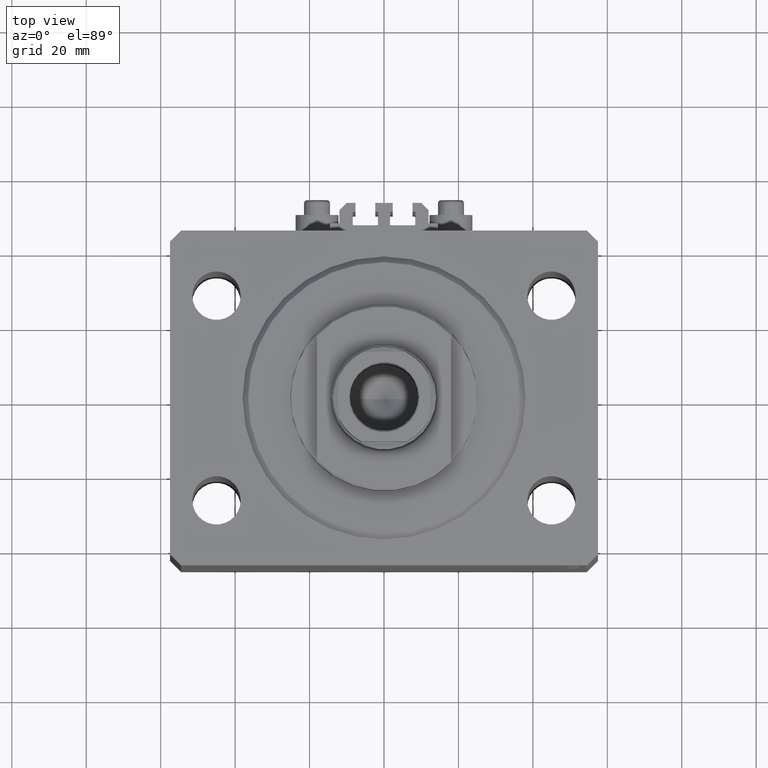
[diagram: clean part render]
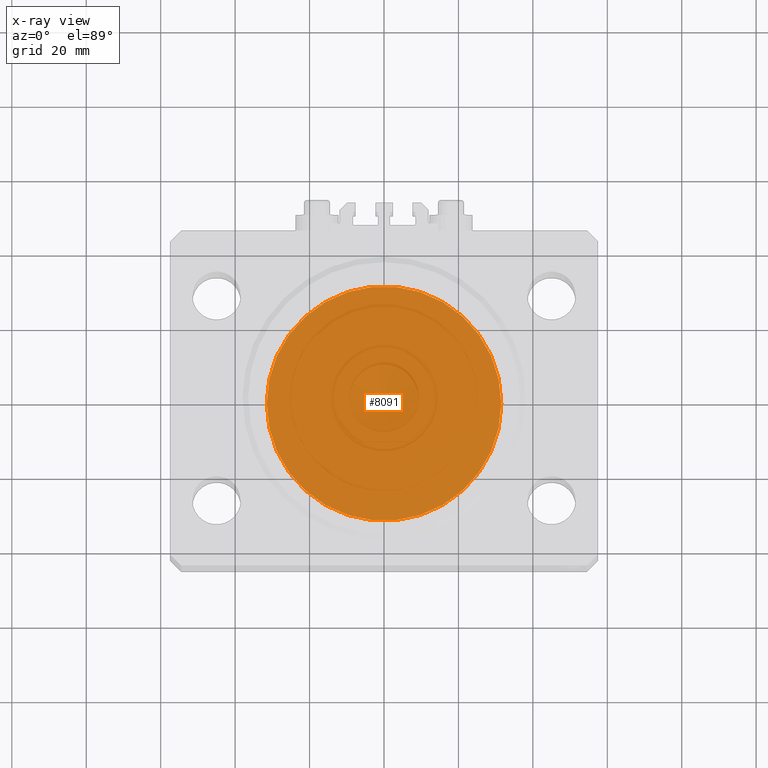
[diagram: x-ray — body ghosted, one internal face saturated and labeled with its STEP entity id]
A machine part, top view, then the same camera in x-ray: the body is ghosted and one INTERNAL B-rep face — a face not visible from any outside direction — is saturated and labeled: STEP entity #8091.
In plain terms, the highlighted planar face has unit normal (0, 0, 1).
Its self-contained STEP definition (entity closure, byte-faithful):
#252 = EDGE_CURVE ( 'NONE', #33418, #7801, #24609, .T. ) ;
#2598 = ORIENTED_EDGE ( 'NONE', *, *, #252, .F. ) ;
#2865 = ORIENTED_EDGE ( 'NONE', *, *, #6141, .F. ) ;
#4874 = CARTESIAN_POINT ( 'NONE',  ( 31.50000000000000000, 3.857637417314162689E-15, 0.000000000000000000 ) ) ;
#5344 = CARTESIAN_POINT ( 'NONE',  ( 0.000000000000000000, 0.000000000000000000, 0.000000000000000000 ) ) ;
#6141 = EDGE_CURVE ( 'NONE', #7801, #33418, #11852, .T. ) ;
#7539 = CARTESIAN_POINT ( 'NONE',  ( -31.50000000000000000, 0.000000000000000000, 0.000000000000000000 ) ) ;
#7801 = VERTEX_POINT ( 'NONE', #7539 ) ;
#8091 = ADVANCED_FACE ( 'NONE', ( #17060 ), #30974, .F. ) ;
#8945 = DIRECTION ( 'NONE',  ( 1.000000000000000000, 0.000000000000000000, -0.000000000000000000 ) ) ;
#11852 = CIRCLE ( 'NONE', #17967, 31.50000000000000000 ) ;
#17060 = FACE_OUTER_BOUND ( 'NONE', #37973, .T. ) ;
#17967 = AXIS2_PLACEMENT_3D ( 'NONE', #5344, #19478, #30493 ) ;
#19306 = DIRECTION ( 'NONE',  ( 1.000000000000000000, 0.000000000000000000, 0.000000000000000000 ) ) ;
#19478 = DIRECTION ( 'NONE',  ( 0.000000000000000000, 0.000000000000000000, 1.000000000000000000 ) ) ;
#24609 = CIRCLE ( 'NONE', #27661, 31.50000000000000000 ) ;
#25531 = DIRECTION ( 'NONE',  ( 0.000000000000000000, 0.000000000000000000, 1.000000000000000000 ) ) ;
#27661 = AXIS2_PLACEMENT_3D ( 'NONE', #36810, #25531, #19306 ) ;
#28079 = DIRECTION ( 'NONE',  ( 0.000000000000000000, 0.000000000000000000, 1.000000000000000000 ) ) ;
#30493 = DIRECTION ( 'NONE',  ( 1.000000000000000000, 0.000000000000000000, 0.000000000000000000 ) ) ;
#30974 = PLANE ( 'NONE',  #34128 ) ;
#31432 = CARTESIAN_POINT ( 'NONE',  ( 0.000000000000000000, 0.000000000000000000, 0.000000000000000000 ) ) ;
#33418 = VERTEX_POINT ( 'NONE', #4874 ) ;
#34128 = AXIS2_PLACEMENT_3D ( 'NONE', #31432, #28079, #8945 ) ;
#36810 = CARTESIAN_POINT ( 'NONE',  ( 0.000000000000000000, 0.000000000000000000, 0.000000000000000000 ) ) ;
#37973 = EDGE_LOOP ( 'NONE', ( #2865, #2598 ) ) ;